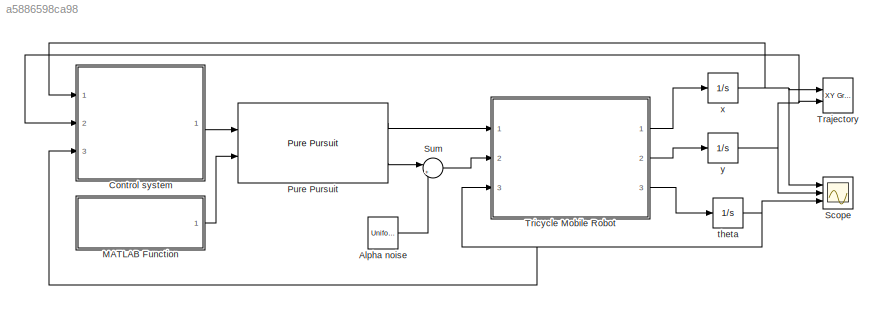
MODEL slx_a5886598ca98
KIND model
CONFIG AbsTol = auto
CONFIG EnableMultiTasking = off
CONFIG FixedStep = auto
CONFIG MaxStep = auto
CONFIG MinStep = auto
CONFIG RelTol = 1e-3
CONFIG SampleTimeConstraint = Unconstrained
CONFIG Solver = VariableStepAuto
CONFIG SolverName = VariableStepAuto
CONFIG StartTime = 0.0
CONFIG StopTime = 24
BLOCK [UniformRandomNumber] Alpha noise
  Maximum = 5*pi/180
  Minimum = 0
  SampleTime = 0.1
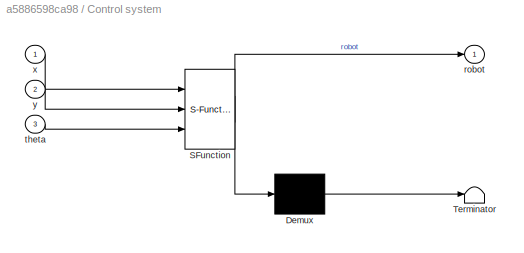
BLOCK [SubSystem] Control system
  ErrorFcn = Stateflow.Translate.translate
  PermitHierarchicalResolution = ExplicitOnly
  Ports = [3, 1]
  RequestExecContextInheritance = off
  SFBlockType = MATLAB Function
  TreatAsAtomicUnit = on
BLOCK [Demux] Control system/ Demux 
  Outputs = 1
  Ports = [1, 1]
BLOCK [S-Function] Control system/ SFunction 
  EnableBusSupport = on
  FunctionName = sf_sfun
  PortCounts = [3 2]
  Ports = [3, 2]
  SFcnIsStateOwnerBlock = off
  SFunctionDeploymentMode = off
  Tag = Stateflow S-Function Part1_3_c 1
BLOCK [Terminator] Control system/ Terminator 
BLOCK [Outport] Control system/robot
  IconDisplay = Port number
  VectorParamsAs1DForOutWhenUnconnected = on
BLOCK [Inport] Control system/theta
  IconDisplay = Port number
  Port = 3
BLOCK [Inport] Control system/x
  IconDisplay = Port number
BLOCK [Inport] Control system/y
  IconDisplay = Port number
  Port = 2
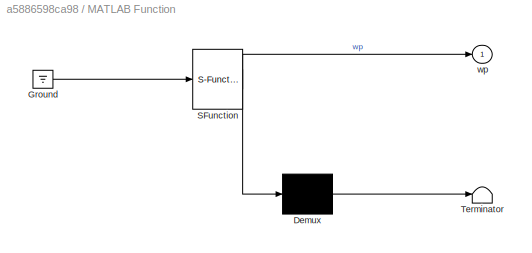
BLOCK [SubSystem] MATLAB Function
  ErrorFcn = Stateflow.Translate.translate
  PermitHierarchicalResolution = ExplicitOnly
  Ports = [0, 1]
  RequestExecContextInheritance = off
  SFBlockType = MATLAB Function
  TreatAsAtomicUnit = on
BLOCK [Demux] MATLAB Function/ Demux 
  Outputs = 1
  Ports = [1, 1]
BLOCK [Ground] MATLAB Function/ Ground 
BLOCK [S-Function] MATLAB Function/ SFunction 
  EnableBusSupport = on
  FunctionName = sf_sfun
  PortCounts = [1 2]
  Ports = [1, 2]
  SFcnIsStateOwnerBlock = off
  SFunctionDeploymentMode = off
  Tag = Stateflow S-Function Part1_3_c 3
BLOCK [Terminator] MATLAB Function/ Terminator 
BLOCK [Outport] MATLAB Function/wp
  IconDisplay = Port number
  VectorParamsAs1DForOutWhenUnconnected = on
BLOCK [Reference] Pure Pursuit  REF=robotalgslib/Pure Pursuit
  Ports = [2, 3]
  SourceBlock = robotalgslib/Pure Pursuit
  SourceProductBaseCode = NV
  SourceProductName = Navigation Toolbox
  SourceType = robotics.slalgs.internal.PurePursuit
BLOCK [Scope] Scope
  Floating = off
  NumInputPorts = 3
  Ports = [3]
  ScopeSpecificationString = Simulink.scopes.TimeScopeBlockCfg('CurrentConfiguration', extmgr.ConfigurationSet(extmgr.Configuration('Core','General UI',true,'FigureColor',[1 1 1]),extmgr.Configuration('Core','Source UI',true),extmgr.Configuration('Sources','WiredSimulink',true),extmgr.Configuration('Visuals','Time Domain',true,'SerializedDisplays',{struct('MinYLimReal','-7.66311','MaxYLimReal','25.42228','YLabelReal','Value',...<+1865ch>
BLOCK [Sum] Sum
  IconShape = round
  InputSameDT = off
  Inputs = |++
  OutDataTypeStr = Inherit: Inherit via internal rule
  Ports = [2, 1]
  SaturateOnIntegerOverflow = off
BLOCK [Reference] Trajectory  REF=simulink/Sinks/XY Graph
  Ports = [2]
  SourceBlock = simulink/Sinks/XY Graph
  SourceProductBaseCode = SL
  SourceProductName = Simulink
  SourceType = XY scope.
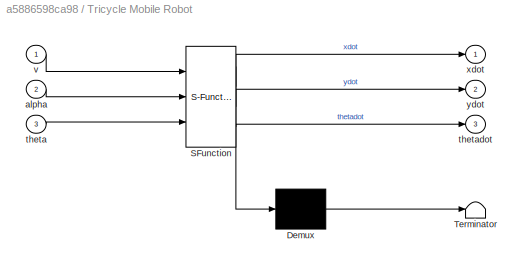
BLOCK [SubSystem] Tricycle Mobile Robot
  ErrorFcn = Stateflow.Translate.translate
  PermitHierarchicalResolution = ExplicitOnly
  Ports = [3, 3]
  RequestExecContextInheritance = off
  SFBlockType = MATLAB Function
  TreatAsAtomicUnit = on
BLOCK [Demux] Tricycle Mobile Robot/ Demux 
  Outputs = 1
  Ports = [1, 1]
BLOCK [S-Function] Tricycle Mobile Robot/ SFunction 
  EnableBusSupport = on
  FunctionName = sf_sfun
  PortCounts = [3 4]
  Ports = [3, 4]
  SFcnIsStateOwnerBlock = off
  SFunctionDeploymentMode = off
  Tag = Stateflow S-Function Part1_3_c 2
BLOCK [Terminator] Tricycle Mobile Robot/ Terminator 
BLOCK [Inport] Tricycle Mobile Robot/alpha
  IconDisplay = Port number
  Port = 2
BLOCK [Inport] Tricycle Mobile Robot/theta
  IconDisplay = Port number
  Port = 3
BLOCK [Outport] Tricycle Mobile Robot/thetadot
  IconDisplay = Port number
  Port = 3
  VectorParamsAs1DForOutWhenUnconnected = on
BLOCK [Inport] Tricycle Mobile Robot/v
  IconDisplay = Port number
BLOCK [Outport] Tricycle Mobile Robot/xdot
  IconDisplay = Port number
  VectorParamsAs1DForOutWhenUnconnected = on
BLOCK [Outport] Tricycle Mobile Robot/ydot
  IconDisplay = Port number
  Port = 2
  VectorParamsAs1DForOutWhenUnconnected = on
BLOCK [Integrator] theta
  Ports = [1, 1]
BLOCK [Integrator] x
  Ports = [1, 1]
BLOCK [Integrator] y
  Ports = [1, 1]
LINE Alpha noise:1 -> Sum:2
LINE Control system:1 -> Pure Pursuit:1
LINE MATLAB Function:1 -> Pure Pursuit:2
LINE Pure Pursuit:1 -> Tricycle Mobile Robot:1
LINE Pure Pursuit:3 -> Sum:1
LINE Sum:1 -> Tricycle Mobile Robot:2
LINE Tricycle Mobile Robot:1 -> x:1
LINE Tricycle Mobile Robot:2 -> y:1
LINE Tricycle Mobile Robot:3 -> theta:1
NET theta:1 -> Control system:3, Scope:3, Tricycle Mobile Robot:3
NET x:1 -> Control system:1, Scope:1, Trajectory:1
NET y:1 -> Control system:2, Scope:2, Trajectory:2
note: NET lines group one-source signal fan-out (src -> all destinations, sorted); 1:1 wires keep LINE
CHART Control system states=1 transitions=1
  STATE_LABEL 'eML_blk_kernel()'
  STATE_LABEL 'SCRIPT:\nfunction robot  = position(x,y,theta)\n    robot = [x y theta];\nend\n'
CHART Tricycle Mobile Robot states=1 transitions=1
  STATE_LABEL 'eML_blk_kernel()'
  STATE_LABEL 'SCRIPT:\nfunction [xdot,ydot,thetadot] = Tricycle_type_2(v,alpha,theta)\n    d = sqrt(3.1);\n    xdot = v*cos(theta);\n    ydot = v*sin(theta);\n    thetadot = v*tan(alpha)/d; \nend'
CHART MATLAB Function states=1 transitions=1
  STATE_LABEL 'eML_blk_kernel()'
  STATE_LABEL 'SCRIPT:\nfunction wp  = waypoint_PurePursuit()\n    wp = [4 0; 8 0; 12 0; 16 0; 20 0; 22 -2; 20 -4; 16 -4; 12 -4; 8 -4; 4 -4;0 -4]\nend\n'
